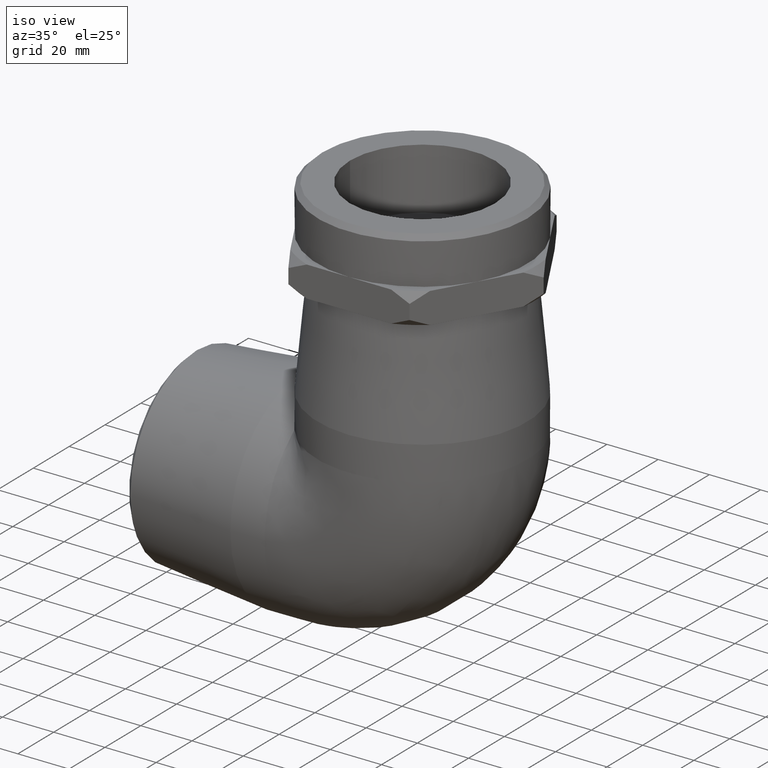
[diagram: clean part render]
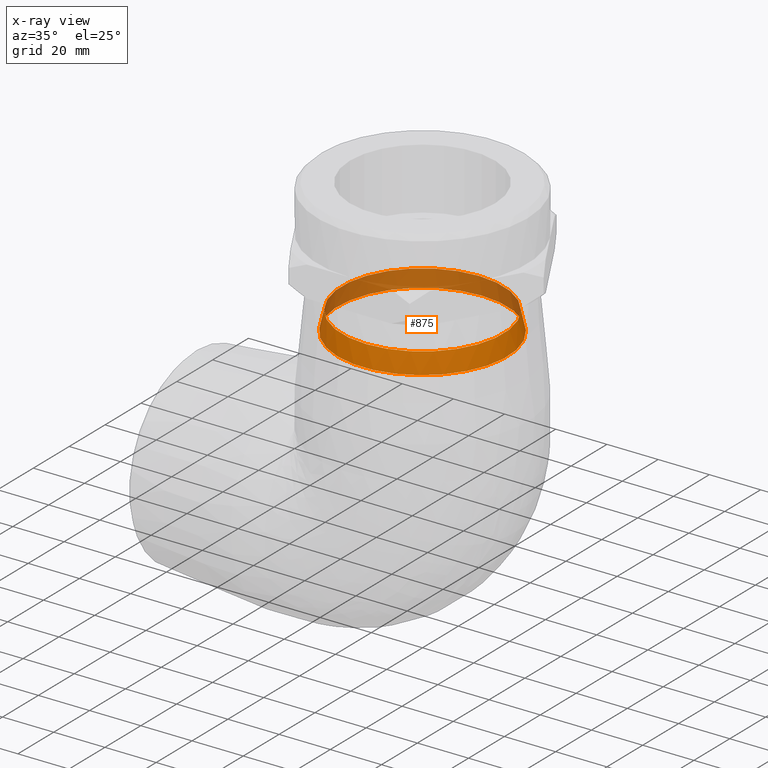
[diagram: x-ray — body ghosted, one internal face saturated and labeled with its STEP entity id]
A machine part, iso view, then the same camera in x-ray: the body is ghosted and one INTERNAL B-rep face — a face not visible from any outside direction — is saturated and labeled: STEP entity #875.
In plain terms, the highlighted conical surface has half-angle 12 deg.
Its self-contained STEP definition (entity closure, byte-faithful):
#69=FACE_BOUND('',#309,.T.);
#208=FACE_OUTER_BOUND('',#308,.T.);
#308=EDGE_LOOP('',(#786));
#309=EDGE_LOOP('',(#787));
#366=CIRCLE('',#996,31.5);
#367=CIRCLE('',#997,33.1154298686922);
#471=VERTEX_POINT('',#1649);
#472=VERTEX_POINT('',#1651);
#577=EDGE_CURVE('',#471,#471,#366,.T.);
#578=EDGE_CURVE('',#472,#472,#367,.T.);
#786=ORIENTED_EDGE('',*,*,#577,.F.);
#787=ORIENTED_EDGE('',*,*,#578,.T.);
#813=CONICAL_SURFACE('',#995,32.3077149343461,11.9999999999999);
#875=ADVANCED_FACE('',(#208,#69),#813,.F.);
#995=AXIS2_PLACEMENT_3D('',#1648,#1253,#1254);
#996=AXIS2_PLACEMENT_3D('',#1650,#1255,#1256);
#997=AXIS2_PLACEMENT_3D('',#1652,#1257,#1258);
#1253=DIRECTION('center_axis',(6.12323399573677E-17,-1.5419764230905E-18,
-1.));
#1254=DIRECTION('ref_axis',(0.,1.,0.));
#1255=DIRECTION('center_axis',(6.12323399573677E-17,-1.5419764230905E-18,
-1.));
#1256=DIRECTION('ref_axis',(-1.,0.,-6.12323399573677E-17));
#1257=DIRECTION('center_axis',(6.12323399573677E-17,-1.5419764230905E-18,
-1.));
#1258=DIRECTION('ref_axis',(-1.,0.,-6.12323399573677E-17));
#1648=CARTESIAN_POINT('Origin',(-4.3474961369731E-15,-2.92975520387194E-17,
71.));
#1649=CARTESIAN_POINT('',(-4.5801790288111E-15,31.5,74.8));
#1650=CARTESIAN_POINT('Origin',(-4.5801790288111E-15,-2.34380416309755E-17,
74.8));
#1651=CARTESIAN_POINT('',(-4.11481324513511E-15,33.1154298686922,67.2));
#1652=CARTESIAN_POINT('Origin',(-4.11481324513511E-15,-3.51570624464633E-17,
67.2));